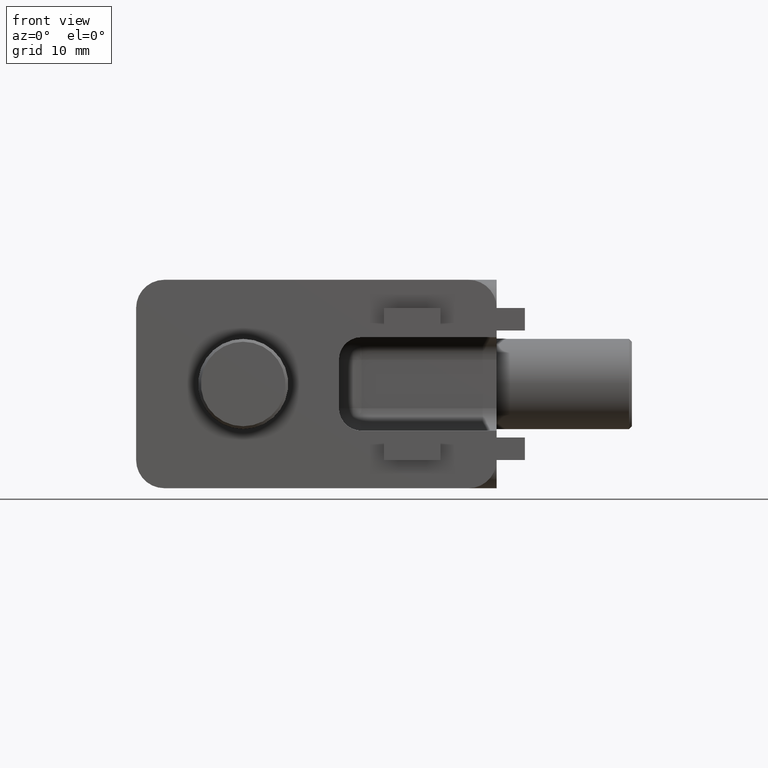
[diagram: clean part render]
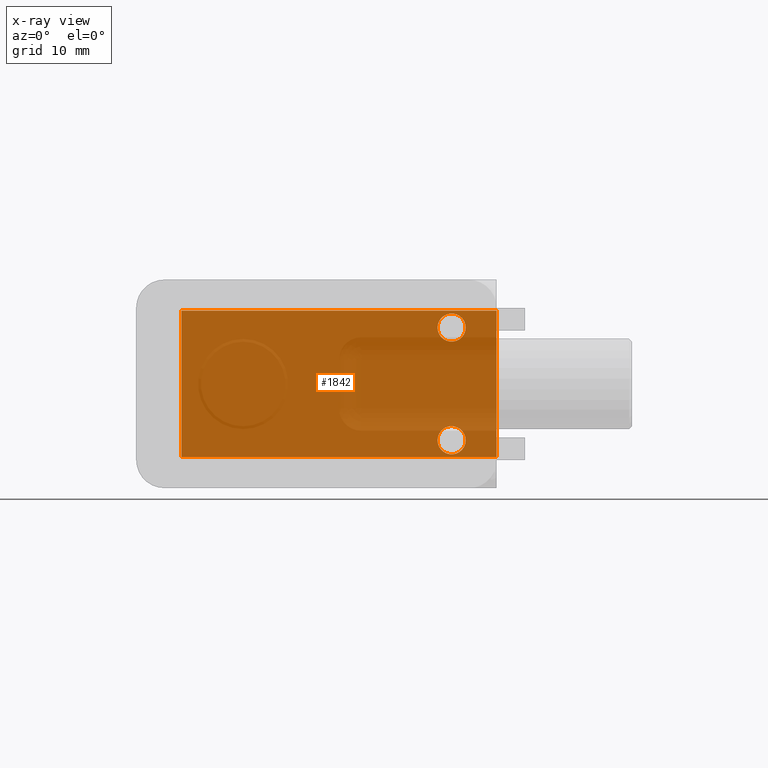
[diagram: x-ray — body ghosted, one internal face saturated and labeled with its STEP entity id]
A machine part, front view, then the same camera in x-ray: the body is ghosted and one INTERNAL B-rep face — a face not visible from any outside direction — is saturated and labeled: STEP entity #1842.
In plain terms, the highlighted planar face has unit normal (-0, 1, 0).
Its self-contained STEP definition (entity closure, byte-faithful):
#44=FACE_BOUND('',#332,.T.);
#45=FACE_BOUND('',#333,.T.);
#92=PLANE('',#2035);
#204=FACE_OUTER_BOUND('',#331,.T.);
#331=EDGE_LOOP('',(#1562,#1563,#1564,#1565));
#332=EDGE_LOOP('',(#1566));
#333=EDGE_LOOP('',(#1567));
#495=LINE('',#3181,#669);
#496=LINE('',#3183,#670);
#497=LINE('',#3185,#671);
#498=LINE('',#3186,#672);
#669=VECTOR('',#2467,1000.);
#670=VECTOR('',#2468,1000.);
#671=VECTOR('',#2469,1000.);
#672=VECTOR('',#2470,1000.);
#775=CIRCLE('',#2026,1.25);
#777=CIRCLE('',#2029,1.25);
#904=VERTEX_POINT('',#3075);
#906=VERTEX_POINT('',#3081);
#914=VERTEX_POINT('',#3179);
#915=VERTEX_POINT('',#3180);
#916=VERTEX_POINT('',#3182);
#917=VERTEX_POINT('',#3184);
#1128=EDGE_CURVE('',#904,#904,#775,.T.);
#1131=EDGE_CURVE('',#906,#906,#777,.T.);
#1142=EDGE_CURVE('',#914,#915,#495,.T.);
#1143=EDGE_CURVE('',#916,#915,#496,.T.);
#1144=EDGE_CURVE('',#917,#916,#497,.T.);
#1145=EDGE_CURVE('',#917,#914,#498,.T.);
#1562=ORIENTED_EDGE('',*,*,#1142,.T.);
#1563=ORIENTED_EDGE('',*,*,#1143,.F.);
#1564=ORIENTED_EDGE('',*,*,#1144,.F.);
#1565=ORIENTED_EDGE('',*,*,#1145,.T.);
#1566=ORIENTED_EDGE('',*,*,#1128,.F.);
#1567=ORIENTED_EDGE('',*,*,#1131,.F.);
#1842=ADVANCED_FACE('',(#204,#44,#45),#92,.F.);
#2026=AXIS2_PLACEMENT_3D('',#3076,#2443,#2444);
#2029=AXIS2_PLACEMENT_3D('',#3082,#2450,#2451);
#2035=AXIS2_PLACEMENT_3D('',#3178,#2465,#2466);
#2443=DIRECTION('center_axis',(1.23908819712629E-16,-1.,0.));
#2444=DIRECTION('ref_axis',(-1.,-1.23908819712629E-16,0.));
#2450=DIRECTION('center_axis',(1.23908819712629E-16,-1.,0.));
#2451=DIRECTION('ref_axis',(-1.,-1.23908819712629E-16,0.));
#2465=DIRECTION('center_axis',(-1.23908819712629E-16,1.,0.));
#2466=DIRECTION('ref_axis',(-1.,-1.23908819712629E-16,0.));
#2467=DIRECTION('',(0.,0.,-1.));
#2468=DIRECTION('',(-1.,-1.23908819712629E-16,4.52521133549632E-32));
#2469=DIRECTION('',(0.,0.,-1.));
#2470=DIRECTION('',(-1.,0.,0.));
#3075=CARTESIAN_POINT('',(13.9748569721971,15.5522856449551,5.));
#3076=CARTESIAN_POINT('Origin',(12.7248569721971,15.5522856449551,5.));
#3081=CARTESIAN_POINT('',(13.9748569721971,15.5522856449551,-5.));
#3082=CARTESIAN_POINT('Origin',(12.7248569721971,15.5522856449551,-5.));
#3178=CARTESIAN_POINT('Origin',(16.7248569721971,15.5522856449551,500000.));
#3179=CARTESIAN_POINT('',(-11.2751430278029,15.5522856449551,6.50000000013051));
#3180=CARTESIAN_POINT('',(-11.2751430278029,15.5522856449551,-6.50000000013051));
#3181=CARTESIAN_POINT('',(-11.2751430278029,15.5522856449551,500000.));
#3182=CARTESIAN_POINT('',(16.7248569721971,15.5522856449551,-6.50000000013051));
#3183=CARTESIAN_POINT('',(16.7248569721971,15.5522856449551,-6.50000000001683));
#3184=CARTESIAN_POINT('',(16.7248569721971,15.5522856449551,6.50000000013051));
#3185=CARTESIAN_POINT('',(16.7248569721971,15.5522856449551,500000.));
#3186=CARTESIAN_POINT('',(19.2248569721971,15.5522856449551,6.5));